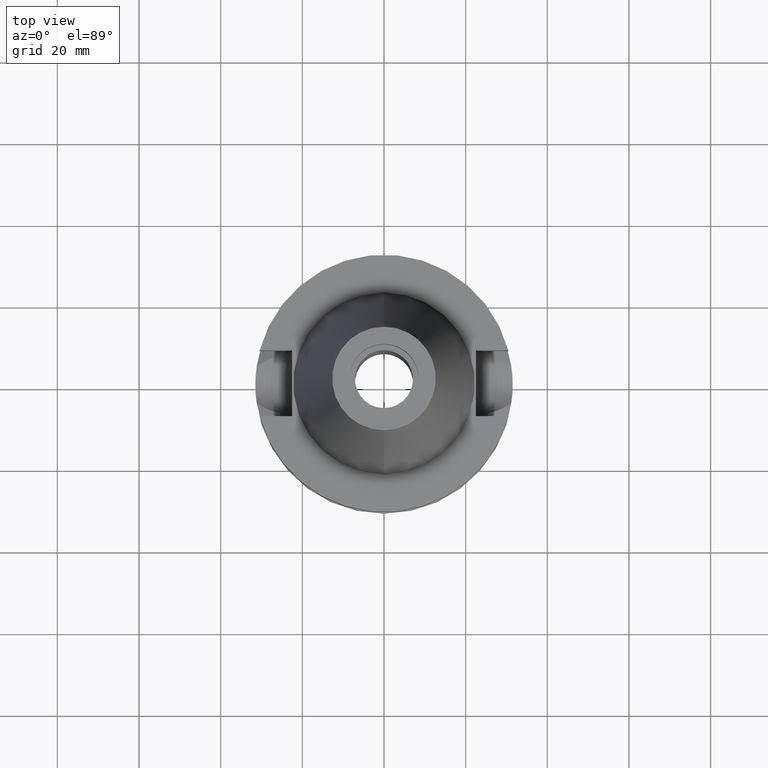
[diagram: clean part render]
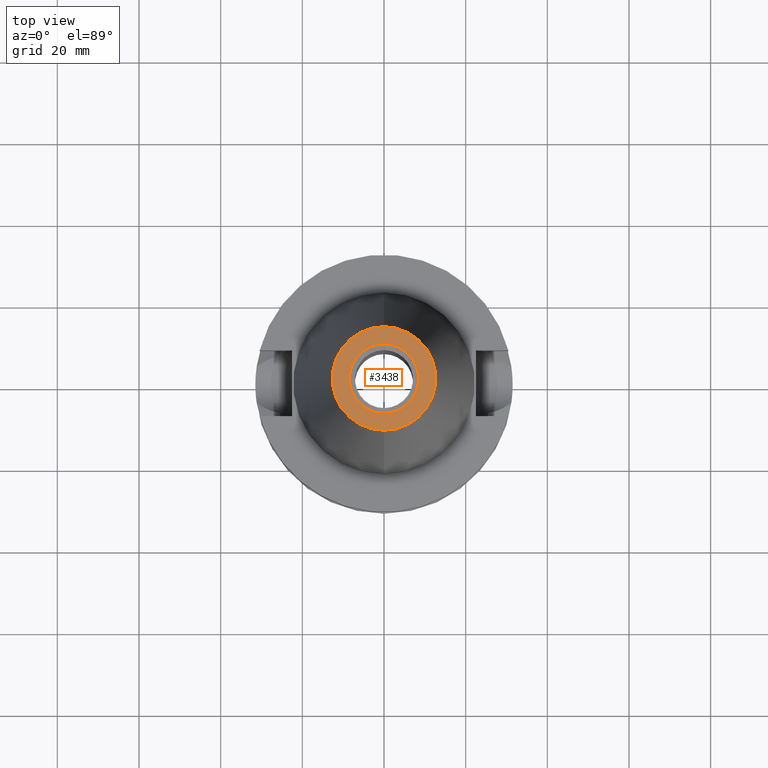
[diagram: same view with one face highlighted and labeled with its STEP entity id]
A machine part, top view. The second image highlights one B-rep face of the part: STEP entity #3438.
In plain terms, the highlighted planar face has unit normal (0, 0, -1).
Its self-contained STEP definition (entity closure, byte-faithful):
#70 = CARTESIAN_POINT ( 'NONE',  ( 0.0000000000000000000, -8.500000000000000000, 65.40000000000000568 ) ) ;
#150 = PLANE ( 'NONE',  #2701 ) ;
#173 = DIRECTION ( 'NONE',  ( 0.0000000000000000000, 0.0000000000000000000, 1.000000000000000000 ) ) ;
#293 = EDGE_LOOP ( 'NONE', ( #931, #2435 ) ) ;
#503 = AXIS2_PLACEMENT_3D ( 'NONE', #1284, #173, #2875 ) ;
#602 = CARTESIAN_POINT ( 'NONE',  ( 0.0000000000000000000, 1.625106302469000024E-14, 65.40000000000000568 ) ) ;
#676 = VERTEX_POINT ( 'NONE', #1248 ) ;
#931 = ORIENTED_EDGE ( 'NONE', *, *, #3418, .F. ) ;
#1072 = CIRCLE ( 'NONE', #3285, 12.68766899429999917 ) ;
#1135 = CIRCLE ( 'NONE', #3065, 8.500000000000000000 ) ;
#1151 = CARTESIAN_POINT ( 'NONE',  ( 0.0000000000000000000, 12.68766899429999917, 65.40000000000000568 ) ) ;
#1248 = CARTESIAN_POINT ( 'NONE',  ( 0.0000000000000000000, 8.500000000000000000, 65.40000000000000568 ) ) ;
#1284 = CARTESIAN_POINT ( 'NONE',  ( 0.0000000000000000000, 2.115822274886999895E-14, 65.40000000000000568 ) ) ;
#1376 = DIRECTION ( 'NONE',  ( 0.0000000000000000000, 1.000000000000000000, 0.0000000000000000000 ) ) ;
#1412 = ORIENTED_EDGE ( 'NONE', *, *, #1622, .F. ) ;
#1558 = DIRECTION ( 'NONE',  ( 0.0000000000000000000, 0.0000000000000000000, 1.000000000000000000 ) ) ;
#1622 = EDGE_CURVE ( 'NONE', #2404, #2503, #1072, .T. ) ;
#1788 = FACE_OUTER_BOUND ( 'NONE', #1832, .T. ) ;
#1832 = EDGE_LOOP ( 'NONE', ( #2153, #1412 ) ) ;
#1904 = DIRECTION ( 'NONE',  ( 0.0000000000000000000, 0.0000000000000000000, -1.000000000000000000 ) ) ;
#2080 = DIRECTION ( 'NONE',  ( 0.0000000000000000000, -1.000000000000000000, 0.0000000000000000000 ) ) ;
#2153 = ORIENTED_EDGE ( 'NONE', *, *, #2443, .F. ) ;
#2258 = CIRCLE ( 'NONE', #2695, 12.68766899429999917 ) ;
#2366 = FACE_BOUND ( 'NONE', #293, .T. ) ;
#2404 = VERTEX_POINT ( 'NONE', #3427 ) ;
#2435 = ORIENTED_EDGE ( 'NONE', *, *, #2972, .F. ) ;
#2443 = EDGE_CURVE ( 'NONE', #2503, #2404, #2258, .T. ) ;
#2450 = DIRECTION ( 'NONE',  ( 0.0000000000000000000, -1.000000000000000000, 0.0000000000000000000 ) ) ;
#2503 = VERTEX_POINT ( 'NONE', #1151 ) ;
#2571 = CARTESIAN_POINT ( 'NONE',  ( 0.0000000000000000000, 2.115822274886999895E-14, 65.40000000000000568 ) ) ;
#2655 = VERTEX_POINT ( 'NONE', #70 ) ;
#2695 = AXIS2_PLACEMENT_3D ( 'NONE', #3029, #3241, #1376 ) ;
#2701 = AXIS2_PLACEMENT_3D ( 'NONE', #3417, #3195, #2080 ) ;
#2759 = CIRCLE ( 'NONE', #503, 8.500000000000000000 ) ;
#2875 = DIRECTION ( 'NONE',  ( 0.0000000000000000000, -1.000000000000000000, 0.0000000000000000000 ) ) ;
#2893 = DIRECTION ( 'NONE',  ( 0.0000000000000000000, 1.000000000000000000, 0.0000000000000000000 ) ) ;
#2972 = EDGE_CURVE ( 'NONE', #2655, #676, #2759, .T. ) ;
#3029 = CARTESIAN_POINT ( 'NONE',  ( 0.0000000000000000000, 1.625106302469000024E-14, 65.40000000000000568 ) ) ;
#3065 = AXIS2_PLACEMENT_3D ( 'NONE', #2571, #1558, #2893 ) ;
#3195 = DIRECTION ( 'NONE',  ( 0.0000000000000000000, 0.0000000000000000000, -1.000000000000000000 ) ) ;
#3241 = DIRECTION ( 'NONE',  ( 0.0000000000000000000, 0.0000000000000000000, -1.000000000000000000 ) ) ;
#3285 = AXIS2_PLACEMENT_3D ( 'NONE', #602, #1904, #2450 ) ;
#3417 = CARTESIAN_POINT ( 'NONE',  ( 0.0000000000000000000, 2.025565805790000122E-14, 65.40000000000000568 ) ) ;
#3418 = EDGE_CURVE ( 'NONE', #676, #2655, #1135, .T. ) ;
#3427 = CARTESIAN_POINT ( 'NONE',  ( 0.0000000000000000000, -12.68766899429999917, 65.40000000000000568 ) ) ;
#3438 = ADVANCED_FACE ( 'NONE', ( #1788, #2366 ), #150, .F. ) ;